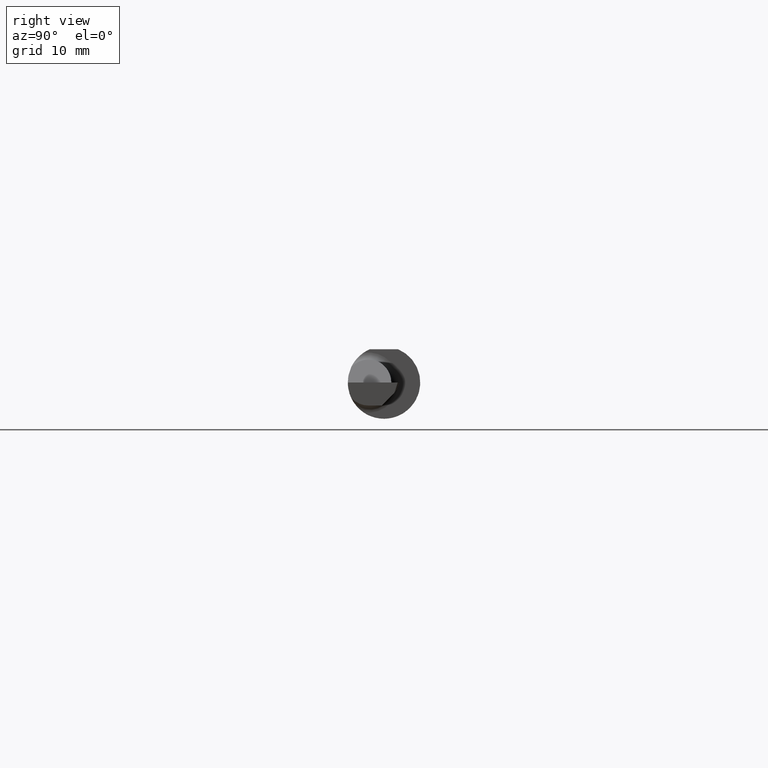
[diagram: clean part render]
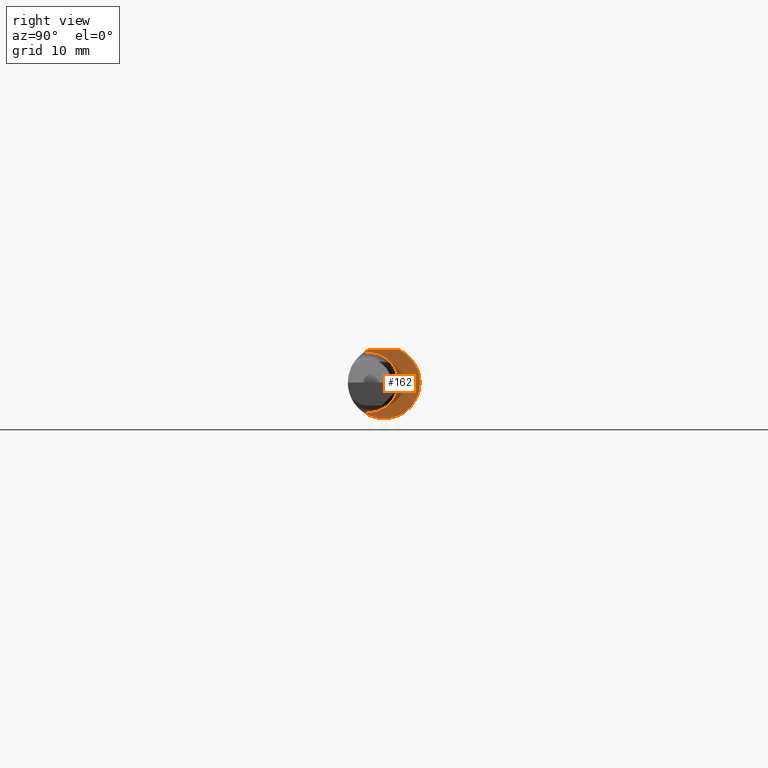
[diagram: same view with one face highlighted and labeled with its STEP entity id]
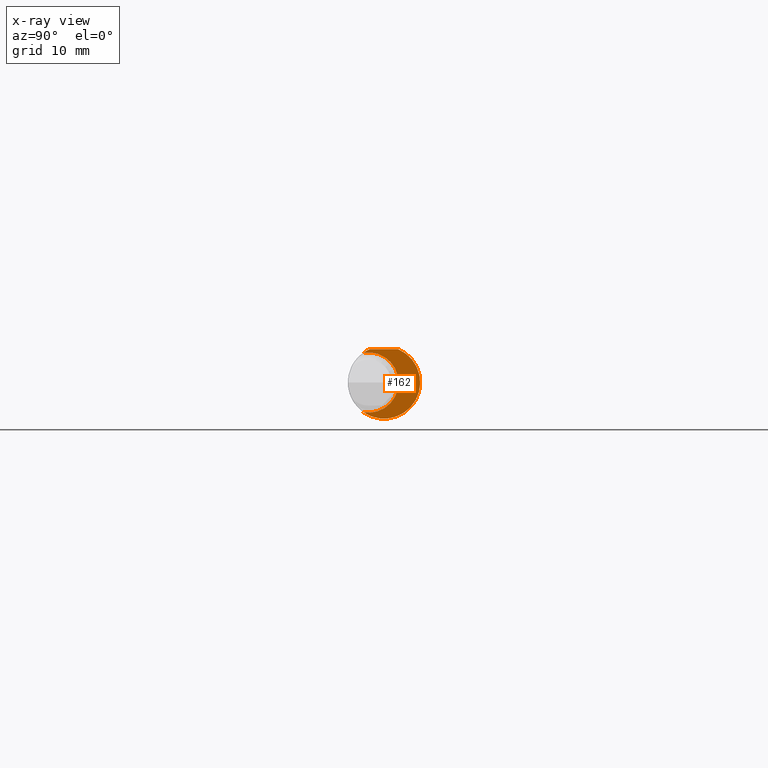
[diagram: x-ray of the same camera — body ghosted, the highlighted face saturated]
A machine part, right view. The second image highlights one B-rep face of the part: STEP entity #162.
The next image is the same camera in x-ray: the body ghosted, the highlighted face saturated — about 0% of this face is hidden behind the body in this view.
In plain terms, the highlighted planar face has unit normal (1, -0, 0).
Its self-contained STEP definition (entity closure, byte-faithful):
#17 = CARTESIAN_POINT ( 'NONE',  ( 1.460000000000000187, 0.05014999999999988911, 0.0000000000000000000 ) ) ;
#61 = LINE ( 'NONE', #559, #432 ) ;
#69 = VERTEX_POINT ( 'NONE', #476 ) ;
#76 = CIRCLE ( 'NONE', #233, 0.1041499999999998954 ) ;
#106 = DIRECTION ( 'NONE',  ( 0.0000000000000000000, -1.000000000000000000, 0.0000000000000000000 ) ) ;
#112 = CARTESIAN_POINT ( 'NONE',  ( 1.460000000000000187, 0.0000000000000000000, 0.0000000000000000000 ) ) ;
#121 = DIRECTION ( 'NONE',  ( 1.000000000000000000, -3.414809992080329023E-18, 0.0000000000000000000 ) ) ;
#126 = DIRECTION ( 'NONE',  ( 0.0000000000000000000, 1.000000000000000000, 0.0000000000000000000 ) ) ;
#132 = DIRECTION ( 'NONE',  ( -1.000000000000000000, 3.414809992080329023E-18, -0.0000000000000000000 ) ) ;
#148 = EDGE_CURVE ( 'NONE', #178, #69, #61, .T. ) ;
#159 = CARTESIAN_POINT ( 'NONE',  ( 1.460000000000000187, -0.07089166666666688044, 0.1027710761704001691 ) ) ;
#162 = ADVANCED_FACE ( 'NONE', ( #320 ), #554, .T. ) ;
#163 = DIRECTION ( 'NONE',  ( 1.000000000000000000, -3.414809992080329023E-18, 0.0000000000000000000 ) ) ;
#178 = VERTEX_POINT ( 'NONE', #232 ) ;
#198 = CARTESIAN_POINT ( 'NONE',  ( 1.460000000000000187, 0.0000000000000000000, 0.0000000000000000000 ) ) ;
#209 = ORIENTED_EDGE ( 'NONE', *, *, #466, .T. ) ;
#232 = CARTESIAN_POINT ( 'NONE',  ( 1.460000000000000187, 0.04895916665957456004, 0.1148500000000000076 ) ) ;
#233 = AXIS2_PLACEMENT_3D ( 'NONE', #460, #132, #106 ) ;
#249 = AXIS2_PLACEMENT_3D ( 'NONE', #17, #163, #445 ) ;
#271 = EDGE_CURVE ( 'NONE', #442, #388, #76, .T. ) ;
#308 = ORIENTED_EDGE ( 'NONE', *, *, #271, .T. ) ;
#313 = AXIS2_PLACEMENT_3D ( 'NONE', #112, #121, #126 ) ;
#320 = FACE_OUTER_BOUND ( 'NONE', #587, .T. ) ;
#324 = ORIENTED_EDGE ( 'NONE', *, *, #434, .T. ) ;
#388 = VERTEX_POINT ( 'NONE', #660 ) ;
#403 = CIRCLE ( 'NONE', #313, 0.1248500000000000026 ) ;
#432 = VECTOR ( 'NONE', #633, 39.37007874015748143 ) ;
#434 = EDGE_CURVE ( 'NONE', #69, #442, #403, .T. ) ;
#442 = VERTEX_POINT ( 'NONE', #159 ) ;
#445 = DIRECTION ( 'NONE',  ( 3.414809992080329023E-18, 1.000000000000000000, 0.0000000000000000000 ) ) ;
#451 = AXIS2_PLACEMENT_3D ( 'NONE', #198, #607, #457 ) ;
#457 = DIRECTION ( 'NONE',  ( 0.0000000000000000000, 1.000000000000000000, 0.0000000000000000000 ) ) ;
#460 = CARTESIAN_POINT ( 'NONE',  ( 1.460000000000000187, -0.05399999999999999939, 0.0000000000000000000 ) ) ;
#466 = EDGE_CURVE ( 'NONE', #388, #178, #563, .T. ) ;
#476 = CARTESIAN_POINT ( 'NONE',  ( 1.460000000000000187, -0.04895916665957457392, 0.1148500000000000215 ) ) ;
#552 = ORIENTED_EDGE ( 'NONE', *, *, #148, .T. ) ;
#554 = PLANE ( 'NONE',  #249 ) ;
#559 = CARTESIAN_POINT ( 'NONE',  ( 1.460000000000000187, 0.1748500000000000054, 0.1148500000000000076 ) ) ;
#563 = CIRCLE ( 'NONE', #451, 0.1248500000000000026 ) ;
#587 = EDGE_LOOP ( 'NONE', ( #209, #552, #324, #308 ) ) ;
#607 = DIRECTION ( 'NONE',  ( 1.000000000000000000, -3.414809992080329023E-18, 0.0000000000000000000 ) ) ;
#633 = DIRECTION ( 'NONE',  ( -3.414809992080329023E-18, -1.000000000000000000, 4.882484975808304553E-17 ) ) ;
#660 = CARTESIAN_POINT ( 'NONE',  ( 1.460000000000000187, -0.07089166666666688044, -0.1027710761704001691 ) ) ;